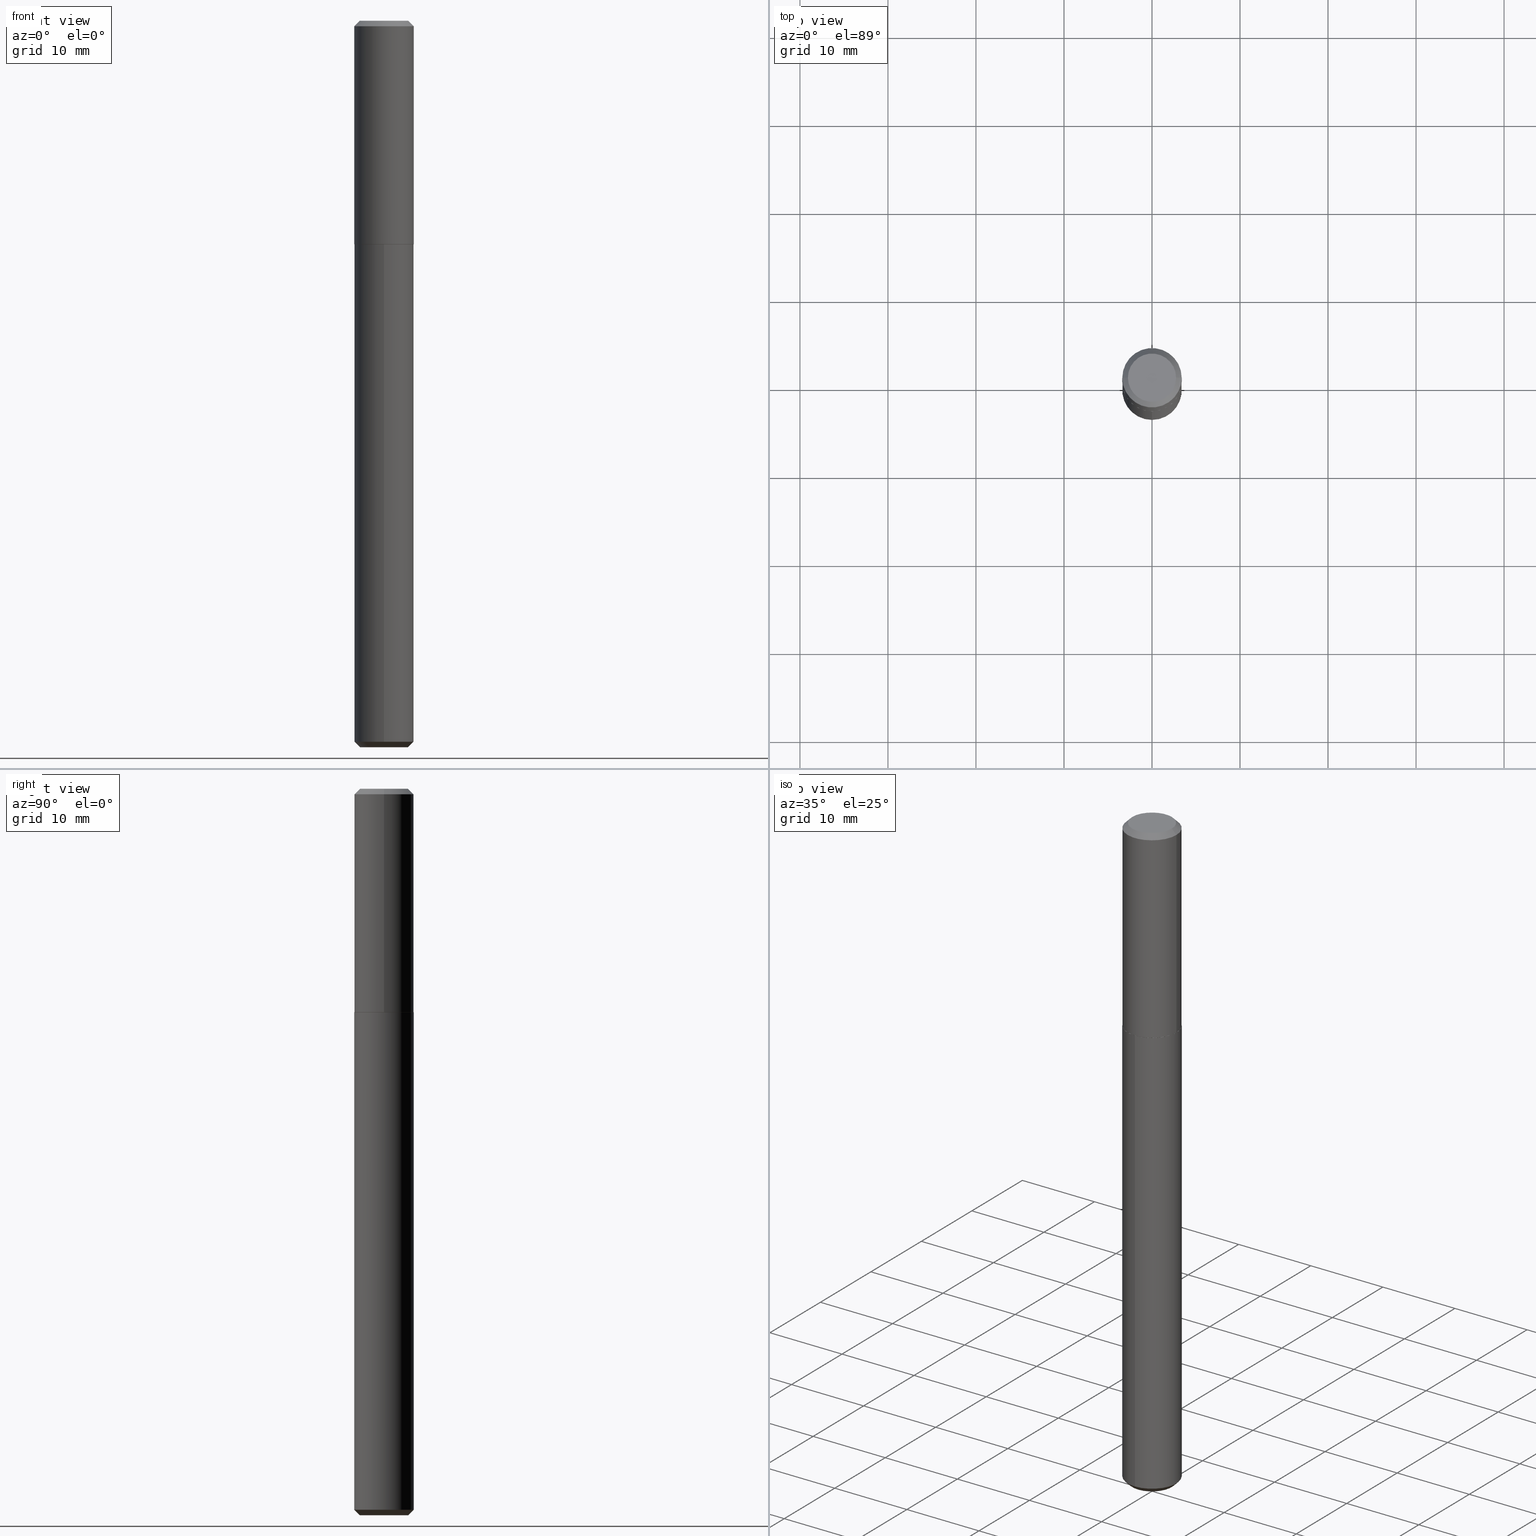
[diagram: canonical four-view strip — front | top / right | iso, engineering-drawing reading convention]
A machine part, canonical four-view strip (front | top / right | iso — engineering-drawing reading convention). The complete STEP part file that produces these views, byte-faithful:
ISO-10303-21;
HEADER;
FILE_DESCRIPTION (( 'STEP AP203' ),
    '1' );
FILE_NAME ('70017.STEP',
    '2024-04-19T13:35:33',
    ( '' ),
    ( '' ),
    'SwSTEP 2.0',
    'SolidWorks 2023',
    '' );
FILE_SCHEMA (( 'CONFIG_CONTROL_DESIGN' ));
ENDSEC;

DATA;
#1 = DIMENSIONAL_EXPONENTS ( 1.000000000000000000, 0.000000000000000000, 0.000000000000000000, 0.000000000000000000, 0.000000000000000000, 0.000000000000000000, 0.000000000000000000 ) ;
#2 = LINE ( 'NONE', #267, #236 ) ;
#3 = ORIENTED_EDGE ( 'NONE', *, *, #30, .T. ) ;
#4 = ADVANCED_FACE ( 'NONE', ( #276 ), #177, .T. ) ;
#5 = CIRCLE ( 'NONE', #295, 0.1077999999999999931 ) ;
#6 = APPROVAL_PERSON_ORGANIZATION ( #287, #189, #349 ) ;
#7 = LINE ( 'NONE', #230, #112 ) ;
#8 = DIRECTION ( 'NONE',  ( 1.000000000000000000, -6.982962677686265922E-15, 4.876159313494118266E-29 ) ) ;
#9 = DIRECTION ( 'NONE',  ( -2.445468806185136597E-29, 3.491481338843145583E-15, 1.000000000000000000 ) ) ;
#10 = ORIENTED_EDGE ( 'NONE', *, *, #184, .F. ) ;
#11 = DIRECTION ( 'NONE',  ( -6.982962677686265133E-15, -1.000000000000000000, 3.085671679590658892E-15 ) ) ;
#12 = FACE_OUTER_BOUND ( 'NONE', #333, .T. ) ;
#13 = ORIENTED_EDGE ( 'NONE', *, *, #30, .F. ) ;
#14 = EDGE_LOOP ( 'NONE', ( #365, #400, #47, #73 ) ) ;
#15 = ORIENTED_EDGE ( 'NONE', *, *, #35, .F. ) ;
#16 = VERTEX_POINT ( 'NONE', #366 ) ;
#17 = VERTEX_POINT ( 'NONE', #242 ) ;
#18 = DIRECTION ( 'NONE',  ( -2.445468806185136597E-29, 3.491481338843145583E-15, 1.000000000000000000 ) ) ;
#19 = EDGE_CURVE ( 'NONE', #141, #105, #332, .T. ) ;
#20 = AXIS2_PLACEMENT_3D ( 'NONE', #74, #140, #374 ) ;
#21 = FACE_OUTER_BOUND ( 'NONE', #238, .T. ) ;
#22 = CYLINDRICAL_SURFACE ( 'NONE', #387, 0.1328000000000000014 ) ;
#23 = EDGE_CURVE ( 'NONE', #398, #105, #89, .T. ) ;
#24 = PERSON_AND_ORGANIZATION ( #183, #228 ) ;
#25 = CIRCLE ( 'NONE', #273, 0.1328000000000000014 ) ;
#26 = AXIS2_PLACEMENT_3D ( 'NONE', #329, #331, #137 ) ;
#27 = COORDINATED_UNIVERSAL_TIME_OFFSET ( 5, 0, .BEHIND. ) ;
#28 = PLANE ( 'NONE',  #402 ) ;
#29 = PERSON_AND_ORGANIZATION_ROLE ( 'creator' ) ;
#30 = EDGE_CURVE ( 'NONE', #369, #306, #257, .T. ) ;
#31 = FACE_OUTER_BOUND ( 'NONE', #352, .T. ) ;
#32 = AXIS2_PLACEMENT_3D ( 'NONE', #375, #80, #211 ) ;
#33 = DIRECTION ( 'NONE',  ( -2.445468806185136877E-29, 3.491481338843145188E-15, 1.000000000000000000 ) ) ;
#34 = LINE ( 'NONE', #199, #67 ) ;
#35 = EDGE_CURVE ( 'NONE', #399, #17, #335, .T. ) ;
#36 = CARTESIAN_POINT ( 'NONE',  ( 7.948471098289592112E-29, -1.134631552277716210E-14, -3.250000000000000000 ) ) ;
#37 = MECHANICAL_CONTEXT ( 'NONE', #261, 'mechanical' ) ;
#38 = AXIS2_PLACEMENT_3D ( 'NONE', #88, #56, #214 ) ;
#39 = CARTESIAN_POINT ( 'NONE',  ( 2.444246071782045197E-29, -3.489735598173725657E-15, -0.9995000000000004992 ) ) ;
#40 = SECURITY_CLASSIFICATION ( '', '', #185 ) ;
#41 = EDGE_CURVE ( 'NONE', #16, #393, #45, .T. ) ;
#42 = FACE_OUTER_BOUND ( 'NONE', #351, .T. ) ;
#43 = DIRECTION ( 'NONE',  ( -0.7071067811865451302, 2.468850131082231817E-15, -0.7071067811865499042 ) ) ;
#44 = ORIENTED_EDGE ( 'NONE', *, *, #54, .T. ) ;
#45 = CIRCLE ( 'NONE', #290, 0.1323000000000001120 ) ;
#46 = AXIS2_PLACEMENT_3D ( 'NONE', #360, #59, #128 ) ;
#47 = ORIENTED_EDGE ( 'NONE', *, *, #23, .F. ) ;
#48 = ORIENTED_EDGE ( 'NONE', *, *, #76, .F. ) ;
#49 = CARTESIAN_POINT ( 'NONE',  ( 2.444246071782045197E-29, -3.489735598173725657E-15, -0.9995000000000004992 ) ) ;
#50 = EDGE_CURVE ( 'NONE', #306, #369, #162, .T. ) ;
#51 = DIRECTION ( 'NONE',  ( -2.445468806185136597E-29, 3.491481338843145583E-15, 1.000000000000000000 ) ) ;
#52 = AXIS2_PLACEMENT_3D ( 'NONE', #221, #256, #386 ) ;
#53 = FACE_OUTER_BOUND ( 'NONE', #72, .T. ) ;
#54 = EDGE_CURVE ( 'NONE', #60, #141, #5, .T. ) ;
#55 = AXIS2_PLACEMENT_3D ( 'NONE', #248, #78, #339 ) ;
#56 = DIRECTION ( 'NONE',  ( -2.445468806185136597E-29, 3.491481338843145583E-15, 1.000000000000000000 ) ) ;
#57 = APPROVAL_STATUS ( 'not_yet_approved' ) ;
#58 = DIRECTION ( 'NONE',  ( -1.000000000000000000, 6.982962677686265922E-15, -4.876176775795935793E-29 ) ) ;
#59 = DIRECTION ( 'NONE',  ( 0.000000000000000000, 0.000000000000000000, 1.000000000000000000 ) ) ;
#60 = VERTEX_POINT ( 'NONE', #132 ) ;
#61 = LINE ( 'NONE', #115, #116 ) ;
#62 = EDGE_CURVE ( 'NONE', #309, #71, #25, .T. ) ;
#63 = DIRECTION ( 'NONE',  ( 1.000000000000000000, -6.982962677686266711E-15, 0.000000000000000000 ) ) ;
#64 = DIRECTION ( 'NONE',  ( -2.445468806185136597E-29, 3.491481338843145583E-15, 1.000000000000000000 ) ) ;
#65 = EDGE_LOOP ( 'NONE', ( #202, #370, #13, #235 ) ) ;
#66 = CARTESIAN_POINT ( 'NONE',  ( 7.887326628377317868E-29, -1.125903958740011493E-14, -3.224999999999999645 ) ) ;
#67 = VECTOR ( 'NONE', #167, 39.37007874015748143 ) ;
#68 = VERTEX_POINT ( 'NONE', #92 ) ;
#69 = ORIENTED_EDGE ( 'NONE', *, *, #50, .F. ) ;
#70 = DIRECTION ( 'NONE',  ( 1.000000000000000000, -6.982962677686265922E-15, 4.876176775795935793E-29 ) ) ;
#71 = VERTEX_POINT ( 'NONE', #148 ) ;
#72 = EDGE_LOOP ( 'NONE', ( #48, #168, #98, #15 ) ) ;
#73 = ORIENTED_EDGE ( 'NONE', *, *, #139, .F. ) ;
#74 = CARTESIAN_POINT ( 'NONE',  ( 6.113672015462882830E-31, -8.728703347107923368E-17, -0.02500000000000016792 ) ) ;
#75 = ORIENTED_EDGE ( 'NONE', *, *, #204, .F. ) ;
#76 = EDGE_CURVE ( 'NONE', #393, #399, #319, .T. ) ;
#77 = APPROVAL_PERSON_ORGANIZATION ( #255, #130, #286 ) ;
#78 = DIRECTION ( 'NONE',  ( -2.445778796490868869E-29, 3.491037415081784460E-15, 1.000000000000000000 ) ) ;
#79 = APPROVAL_STATUS ( 'not_yet_approved' ) ;
#80 = DIRECTION ( 'NONE',  ( -2.445778796490868869E-29, 3.491037415081784460E-15, 1.000000000000000000 ) ) ;
#81 = LINE ( 'NONE', #382, #143 ) ;
#82 = CC_DESIGN_DATE_AND_TIME_ASSIGNMENT ( #415, #218, ( #40 ) ) ;
#83 = AXIS2_PLACEMENT_3D ( 'NONE', #343, #348, #315 ) ;
#84 = AXIS2_PLACEMENT_3D ( 'NONE', #127, #197, #397 ) ;
#85 = APPROVAL_DATE_TIME ( #282, #345 ) ;
#86 = PERSON_AND_ORGANIZATION ( #183, #228 ) ;
#87 = APPROVAL_DATE_TIME ( #154, #130 ) ;
#88 = CARTESIAN_POINT ( 'NONE',  ( 2.445468806185137718E-29, -3.491481338843147160E-15, -1.000000000000000444 ) ) ;
#89 = CIRCLE ( 'NONE', #20, 0.1328000000000000014 ) ;
#90 = CIRCLE ( 'NONE', #407, 0.1328000000000000014 ) ;
#91 = CARTESIAN_POINT ( 'NONE',  ( -8.819790682702965946E-47, 1.259232360816658556E-32, 3.606584823488954451E-18 ) ) ;
#92 = CARTESIAN_POINT ( 'NONE',  ( 8.547829111194798336E-16, 0.1077999999999886410, -3.250000000000000444 ) ) ;
#93 = PERSON_AND_ORGANIZATION_ROLE ( 'design_owner' ) ;
#94 = ADVANCED_FACE ( 'NONE', ( #376 ), #346, .T. ) ;
#95 = DIRECTION ( 'NONE',  ( -2.445468806185136597E-29, 3.491481338843145583E-15, 1.000000000000000000 ) ) ;
#96 = CIRCLE ( 'NONE', #103, 0.1328000000000000014 ) ;
#97 = DIRECTION ( 'NONE',  ( -6.982962677686265133E-15, -1.000000000000000000, 4.114228906120878260E-15 ) ) ;
#98 = ORIENTED_EDGE ( 'NONE', *, *, #367, .T. ) ;
#99 = PRODUCT_DEFINITION_SHAPE ( 'NONE', 'NONE',  #308 ) ;
#100 = DIRECTION ( 'NONE',  ( 5.024295867788020580E-15, 0.7071067811865441310, 0.7071067811865509034 ) ) ;
#101 = EDGE_CURVE ( 'NONE', #304, #68, #111, .T. ) ;
#102 = ORIENTED_EDGE ( 'NONE', *, *, #252, .T. ) ;
#103 = AXIS2_PLACEMENT_3D ( 'NONE', #385, #288, #63 ) ;
#104 = DIRECTION ( 'NONE',  ( -2.445468806185136597E-29, 3.491481338843145583E-15, 1.000000000000000000 ) ) ;
#105 = VERTEX_POINT ( 'NONE', #182 ) ;
#106 = DIRECTION ( 'NONE',  ( -2.445778796490868869E-29, 3.491037415081784460E-15, 1.000000000000000000 ) ) ;
#107 = ORIENTED_EDGE ( 'NONE', *, *, #19, .F. ) ;
#108 = EDGE_CURVE ( 'NONE', #369, #309, #61, .T. ) ;
#109 = ORIENTED_EDGE ( 'NONE', *, *, #151, .F. ) ;
#110 = EDGE_LOOP ( 'NONE', ( #3, #138, #231, #206 ) ) ;
#111 = CIRCLE ( 'NONE', #52, 0.1077999999999999931 ) ;
#112 = VECTOR ( 'NONE', #131, 39.37007874015748143 ) ;
#113 = CC_DESIGN_PERSON_AND_ORGANIZATION_ASSIGNMENT ( #24, #152, ( #337 ) ) ;
#114 = CARTESIAN_POINT ( 'NONE',  ( -0.1077999999999999931, 7.964068933901182285E-16, 7.213169646972493186E-18 ) ) ;
#115 = CARTESIAN_POINT ( 'NONE',  ( -9.273374435967115704E-16, -0.1328000000000034708, -0.9999999999999998890 ) ) ;
#116 = VECTOR ( 'NONE', #316, 39.37007874015748143 ) ;
#117 = APPROVAL_STATUS ( 'not_yet_approved' ) ;
#118 = CC_DESIGN_PERSON_AND_ORGANIZATION_ASSIGNMENT ( #119, #188, ( #40 ) ) ;
#119 = PERSON_AND_ORGANIZATION ( #183, #228 ) ;
#120 = DIRECTION ( 'NONE',  ( 6.982962677686265922E-15, 1.000000000000000000, -3.491037415081784460E-15 ) ) ;
#121 = COORDINATED_UNIVERSAL_TIME_OFFSET ( 5, 0, .BEHIND. ) ;
#122 = CARTESIAN_POINT ( 'NONE',  ( 6.113672015462882830E-31, -8.728703347107923368E-17, -0.02500000000000016792 ) ) ;
#123 = EDGE_CURVE ( 'NONE', #60, #398, #81, .T. ) ;
#124 = CARTESIAN_POINT ( 'NONE',  ( 1.008993461240133010E-29, -5.548595791903587079E-15, -1.000000000000000444 ) ) ;
#125 = DIRECTION ( 'NONE',  ( -6.982962677686265133E-15, -1.000000000000000000, 5.068363624609022710E-15 ) ) ;
#126 = MANIFOLD_SOLID_BREP ( 'Body-Move/Copy2[1]', #186 ) ;
#127 = CARTESIAN_POINT ( 'NONE',  ( 7.887326628377317868E-29, -1.125903958740011493E-14, -3.224999999999999645 ) ) ;
#128 = DIRECTION ( 'NONE',  ( 1.000000000000000000, 0.000000000000000000, 0.000000000000000000 ) ) ;
#129 = ORIENTED_EDGE ( 'NONE', *, *, #396, .F. ) ;
#130 = APPROVAL ( #57, 'UNSPECIFIED' ) ;
#131 = DIRECTION ( 'NONE',  ( -2.445778796490868588E-29, 3.491037415081784460E-15, 1.000000000000000000 ) ) ;
#132 = CARTESIAN_POINT ( 'NONE',  ( 0.1077999999999999931, -8.689614258674547851E-16, 7.213169646983578839E-18 ) ) ;
#133 = CARTESIAN_POINT ( 'NONE',  ( -7.527633766544998796E-16, -0.1078000000000113451, -3.249999999999999556 ) ) ;
#134 = ORIENTED_EDGE ( 'NONE', *, *, #50, .T. ) ;
#135 = CONICAL_SURFACE ( 'NONE', #413, 0.1328000000000000014, 0.7853981633974400633 ) ;
#136 = AXIS2_PLACEMENT_3D ( 'NONE', #325, #104, #368 ) ;
#137 = DIRECTION ( 'NONE',  ( 1.000000000000000000, -6.982962677686265133E-15, 0.000000000000000000 ) ) ;
#138 = ORIENTED_EDGE ( 'NONE', *, *, #377, .T. ) ;
#139 = EDGE_CURVE ( 'NONE', #17, #398, #414, .T. ) ;
#140 = DIRECTION ( 'NONE',  ( -2.445468806185136597E-29, 3.491481338843145583E-15, 1.000000000000000000 ) ) ;
#141 = VERTEX_POINT ( 'NONE', #114 ) ;
#142 = DIRECTION ( 'NONE',  ( 1.000000000000000000, -6.982962677686265133E-15, 0.000000000000000000 ) ) ;
#143 = VECTOR ( 'NONE', #289, 39.37007874015748143 ) ;
#144 = LOCAL_TIME ( 9, 35, 33.00000000000000000, #313 ) ;
#145 = PLANE ( 'NONE',  #209 ) ;
#146 = CALENDAR_DATE ( 2024, 19, 4 ) ;
#147 = ADVANCED_FACE ( 'NONE', ( #416 ), #350, .F. ) ;
#148 = CARTESIAN_POINT ( 'NONE',  ( 9.436007530894919427E-16, 0.1327999999999965042, -1.000000000000000888 ) ) ;
#149 = VECTOR ( 'NONE', #310, 39.37007874015748143 ) ;
#150 = CC_DESIGN_SECURITY_CLASSIFICATION ( #40, ( #337 ) ) ;
#151 = EDGE_CURVE ( 'NONE', #105, #398, #96, .T. ) ;
#152 = PERSON_AND_ORGANIZATION_ROLE ( 'creator' ) ;
#153 = CARTESIAN_POINT ( 'NONE',  ( -0.1328000000000001124, -2.546134845084311614E-15, -0.9995000000000004992 ) ) ;
#154 = DATE_AND_TIME ( #409, #144 ) ;
#155 = ADVANCED_FACE ( 'NONE', ( #31 ), #314, .T. ) ;
#156 = CARTESIAN_POINT ( 'NONE',  ( 2.444246071782045197E-29, -3.489735598173725657E-15, -0.9995000000000004992 ) ) ;
#157 = ADVANCED_FACE ( 'NONE', ( #187 ), #28, .F. ) ;
#158 = CONICAL_SURFACE ( 'NONE', #84, 0.1328000000000000014, 0.7853981633974400633 ) ;
#159 = CARTESIAN_POINT ( 'NONE',  ( 7.947773620101693940E-29, -1.134731435124022443E-14, -3.250000000000000000 ) ) ;
#160 = DIRECTION ( 'NONE',  ( 1.000000000000000000, -6.982962677686265922E-15, 4.876159313494118266E-29 ) ) ;
#161 = ORIENTED_EDGE ( 'NONE', *, *, #35, .T. ) ;
#162 = CIRCLE ( 'NONE', #32, 0.1328000000000000014 ) ;
#163 =( GEOMETRIC_REPRESENTATION_CONTEXT ( 3 ) GLOBAL_UNCERTAINTY_ASSIGNED_CONTEXT ( ( #338 ) ) GLOBAL_UNIT_ASSIGNED_CONTEXT ( ( #213, #247, #371 ) ) REPRESENTATION_CONTEXT ( 'NONE', 'WORKASPACE' ) );
#164 = PRODUCT ( '70017', '70017', '', ( #37 ) ) ;
#165 = PLANE ( 'NONE',  #362 ) ;
#166 = PERSON_AND_ORGANIZATION ( #183, #228 ) ;
#167 = DIRECTION ( 'NONE',  ( -4.937700262164507021E-15, -0.7071067811865392461, 0.7071067811865557884 ) ) ;
#168 = ORIENTED_EDGE ( 'NONE', *, *, #184, .T. ) ;
#169 = DIRECTION ( 'NONE',  ( -2.445778796490868869E-29, 3.491037415081784460E-15, 1.000000000000000000 ) ) ;
#170 = DIRECTION ( 'NONE',  ( 1.000000000000000000, -6.982962677686265133E-15, 0.000000000000000000 ) ) ;
#171 = CC_DESIGN_PERSON_AND_ORGANIZATION_ASSIGNMENT ( #86, #408, ( #337 ) ) ;
#172 = ORIENTED_EDGE ( 'NONE', *, *, #23, .T. ) ;
#173 = ADVANCED_FACE ( 'NONE', ( #354 ), #22, .T. ) ;
#174 = AXIS2_PLACEMENT_3D ( 'NONE', #122, #258, #411 ) ;
#175 = CONICAL_SURFACE ( 'NONE', #347, 0.1328000000000000014, 0.7853981633974449483 ) ;
#176 = ORIENTED_EDGE ( 'NONE', *, *, #377, .F. ) ;
#177 = CYLINDRICAL_SURFACE ( 'NONE', #305, 0.1328000000000000569 ) ;
#178 = CARTESIAN_POINT ( 'NONE',  ( -0.1328000000000000014, 8.400504101256570010E-16, -0.02500000000000016792 ) ) ;
#179 = DIRECTION ( 'NONE',  ( 1.000000000000000000, -6.982962677686269077E-15, 0.000000000000000000 ) ) ;
#180 = ADVANCED_FACE ( 'NONE', ( #291 ), #381, .T. ) ;
#181 = AXIS2_PLACEMENT_3D ( 'NONE', #391, #9, #160 ) ;
#182 = CARTESIAN_POINT ( 'NONE',  ( -0.1328000000000000014, -8.449105627329891359E-16, -0.02500000000000016792 ) ) ;
#183 = PERSON ( 'UNSPECIFIED', 'UNSPECIFIED', 'UNSPECIFIED', ('UNSPECIFIED'), ('UNSPECIFIED'), ('UNSPECIFIED') ) ;
#184 = EDGE_CURVE ( 'NONE', #393, #16, #378, .T. ) ;
#185 = SECURITY_CLASSIFICATION_LEVEL ( 'unclassified' ) ;
#186 = CLOSED_SHELL ( 'NONE', ( #173, #318, #277, #180, #212, #157 ) ) ;
#187 = FACE_OUTER_BOUND ( 'NONE', #302, .T. ) ;
#188 = PERSON_AND_ORGANIZATION_ROLE ( 'classification_officer' ) ;
#189 = APPROVAL ( #117, 'UNSPECIFIED' ) ;
#190 = CARTESIAN_POINT ( 'NONE',  ( 0.1328000000000000569, -9.273374435967366167E-16, 6.475562758257005110E-30 ) ) ;
#191 = APPLICATION_PROTOCOL_DEFINITION ( 'international standard', 'config_control_design', 1994, #261 ) ;
#192 = ORIENTED_EDGE ( 'NONE', *, *, #108, .T. ) ;
#193 = CARTESIAN_POINT ( 'NONE',  ( 2.445468806185137438E-29, -3.491481338843146371E-15, -1.000000000000000222 ) ) ;
#194 = CIRCLE ( 'NONE', #181, 0.1077999999999999931 ) ;
#195 = CIRCLE ( 'NONE', #274, 0.1077999999999999931 ) ;
#196 = DIRECTION ( 'NONE',  ( -1.000000000000000000, 6.982962677686266711E-15, 0.000000000000000000 ) ) ;
#197 = DIRECTION ( 'NONE',  ( -2.445778796490868869E-29, 3.491037415081784460E-15, 1.000000000000000000 ) ) ;
#198 = CC_DESIGN_DATE_AND_TIME_ASSIGNMENT ( #253, #223, ( #308 ) ) ;
#199 = CARTESIAN_POINT ( 'NONE',  ( -9.273374435966573362E-16, -0.1328000000000112424, -3.224999999999999201 ) ) ;
#200 = DIRECTION ( 'NONE',  ( -6.982962677686265133E-15, -1.000000000000000000, 3.085671679590658892E-15 ) ) ;
#201 = ORIENTED_EDGE ( 'NONE', *, *, #406, .T. ) ;
#202 = ORIENTED_EDGE ( 'NONE', *, *, #101, .T. ) ;
#203 = ADVANCED_BREP_SHAPE_REPRESENTATION ( '70017', ( #126, #281, #46 ), #163 ) ;
#204 = EDGE_CURVE ( 'NONE', #399, #105, #249, .T. ) ;
#205 = CARTESIAN_POINT ( 'NONE',  ( 9.436007530894923371E-16, 0.1327999999999888436, -3.225000000000000089 ) ) ;
#206 = ORIENTED_EDGE ( 'NONE', *, *, #108, .F. ) ;
#207 = ORIENTED_EDGE ( 'NONE', *, *, #139, .T. ) ;
#208 = ORIENTED_EDGE ( 'NONE', *, *, #62, .T. ) ;
#209 = AXIS2_PLACEMENT_3D ( 'NONE', #124, #280, #120 ) ;
#210 = ORIENTED_EDGE ( 'NONE', *, *, #367, .F. ) ;
#211 = DIRECTION ( 'NONE',  ( -6.982962677686265133E-15, -1.000000000000000000, 4.114228906120878260E-15 ) ) ;
#212 = ADVANCED_FACE ( 'NONE', ( #21 ), #145, .F. ) ;
#213 =( CONVERSION_BASED_UNIT ( 'INCH', #358 ) LENGTH_UNIT ( ) NAMED_UNIT ( #1 ) );
#214 = DIRECTION ( 'NONE',  ( 1.000000000000000000, -6.982962677686269077E-15, 0.000000000000000000 ) ) ;
#215 = VECTOR ( 'NONE', #43, 39.37007874015748143 ) ;
#216 = CC_DESIGN_APPROVAL ( #130, ( #40 ) ) ;
#217 = CC_DESIGN_PERSON_AND_ORGANIZATION_ASSIGNMENT ( #166, #29, ( #308 ) ) ;
#218 = DATE_TIME_ROLE ( 'classification_date' ) ;
#219 = DIRECTION ( 'NONE',  ( -6.982962677686265133E-15, -1.000000000000000000, 3.085671679590658892E-15 ) ) ;
#220 = APPROVAL_PERSON_ORGANIZATION ( #389, #345, #342 ) ;
#221 = CARTESIAN_POINT ( 'NONE',  ( 7.948471098289592112E-29, -1.134631552277716210E-14, -3.250000000000000000 ) ) ;
#222 = PRODUCT_RELATED_PRODUCT_CATEGORY ( 'detail', '', ( #164 ) ) ;
#223 = DATE_TIME_ROLE ( 'creation_date' ) ;
#224 = DIRECTION ( 'NONE',  ( -6.982962677686265922E-15, -1.000000000000000000, 3.491037415081784460E-15 ) ) ;
#225 = APPLICATION_PROTOCOL_DEFINITION ( 'international standard', 'config_control_design', 1994, #250 ) ;
#226 = DIRECTION ( 'NONE',  ( 2.438088387897960049E-29, -3.491481338843145188E-15, -1.000000000000000000 ) ) ;
#227 = CONICAL_SURFACE ( 'NONE', #344, 0.1328000000000001124, 0.7853981633975507526 ) ;
#228 = ORGANIZATION ( 'UNSPECIFIED', 'UNSPECIFIED', '' ) ;
#229 = ADVANCED_FACE ( 'NONE', ( #53 ), #227, .T. ) ;
#230 = CARTESIAN_POINT ( 'NONE',  ( 9.436007530894375113E-16, 0.1327999999999965042, -1.000000000000000666 ) ) ;
#231 = ORIENTED_EDGE ( 'NONE', *, *, #62, .F. ) ;
#232 = CARTESIAN_POINT ( 'NONE',  ( -9.273374435966567446E-16, -0.1328000000000111591, -3.224999999999999201 ) ) ;
#233 = ORIENTED_EDGE ( 'NONE', *, *, #299, .F. ) ;
#234 = CARTESIAN_POINT ( 'NONE',  ( 6.113672015462882830E-31, -8.728703347107923368E-17, -0.02500000000000016792 ) ) ;
#235 = ORIENTED_EDGE ( 'NONE', *, *, #252, .F. ) ;
#236 = VECTOR ( 'NONE', #100, 39.37007874015748143 ) ;
#237 = DIRECTION ( 'NONE',  ( -2.445778796490868869E-29, 3.491037415081784460E-15, 1.000000000000000000 ) ) ;
#238 = EDGE_LOOP ( 'NONE', ( #208, #372 ) ) ;
#239 = DIRECTION ( 'NONE',  ( -2.445468806185136597E-29, 3.491481338843145583E-15, 1.000000000000000000 ) ) ;
#240 = LINE ( 'NONE', #303, #379 ) ;
#241 = EDGE_LOOP ( 'NONE', ( #392, #301, #129, #210 ) ) ;
#242 = CARTESIAN_POINT ( 'NONE',  ( 0.1328000000000001124, -4.417073041770462668E-15, -0.9995000000000004992 ) ) ;
#243 = ORIENTED_EDGE ( 'NONE', *, *, #54, .F. ) ;
#244 = ORIENTED_EDGE ( 'NONE', *, *, #406, .F. ) ;
#245 = CLOSED_SHELL ( 'NONE', ( #155, #4, #94, #269, #229, #260, #380, #147 ) ) ;
#246 = CIRCLE ( 'NONE', #26, 0.1328000000000001124 ) ;
#247 =( NAMED_UNIT ( * ) PLANE_ANGLE_UNIT ( ) SI_UNIT ( $, .RADIAN. ) );
#248 = CARTESIAN_POINT ( 'NONE',  ( 7.887326628377317868E-29, -1.125903958740011493E-14, -3.224999999999999645 ) ) ;
#249 = LINE ( 'NONE', #356, #149 ) ;
#250 = APPLICATION_CONTEXT ( 'configuration controlled 3d designs of mechanical parts and assemblies' ) ;
#251 = DIRECTION ( 'NONE',  ( -2.445778796490868869E-29, 3.491037415081784460E-15, 1.000000000000000000 ) ) ;
#252 = EDGE_CURVE ( 'NONE', #304, #369, #34, .T. ) ;
#253 = DATE_AND_TIME ( #412, #265 ) ;
#254 = SHAPE_DEFINITION_REPRESENTATION ( #99, #203 ) ;
#255 = PERSON_AND_ORGANIZATION ( #183, #228 ) ;
#256 = DIRECTION ( 'NONE',  ( -2.445778796490868869E-29, 3.491037415081784460E-15, 1.000000000000000000 ) ) ;
#257 = CIRCLE ( 'NONE', #55, 0.1328000000000000014 ) ;
#258 = DIRECTION ( 'NONE',  ( 2.445468806185136597E-29, -3.491481338843145583E-15, -1.000000000000000000 ) ) ;
#259 = DIRECTION ( 'NONE',  ( -2.445778796490868588E-29, 3.491037415081784460E-15, 1.000000000000000000 ) ) ;
#260 = ADVANCED_FACE ( 'NONE', ( #12 ), #364, .T. ) ;
#261 = APPLICATION_CONTEXT ( 'configuration controlled 3d designs of mechanical parts and assemblies' ) ;
#262 = CARTESIAN_POINT ( 'NONE',  ( 2.445468806185137998E-29, -3.491481338843147555E-15, -1.000000000000000444 ) ) ;
#263 = VECTOR ( 'NONE', #33, 39.37007874015748143 ) ;
#264 = PERSON_AND_ORGANIZATION ( #183, #228 ) ;
#265 = LOCAL_TIME ( 9, 35, 33.00000000000000000, #27 ) ;
#266 = EDGE_LOOP ( 'NONE', ( #297, #201, #102, #69 ) ) ;
#267 = CARTESIAN_POINT ( 'NONE',  ( 9.436007530894917455E-16, 0.1327999999999887326, -3.225000000000000089 ) ) ;
#268 = FACE_OUTER_BOUND ( 'NONE', #401, .T. ) ;
#269 = ADVANCED_FACE ( 'NONE', ( #42 ), #165, .F. ) ;
#270 = CARTESIAN_POINT ( 'NONE',  ( 2.445468806185137998E-29, -3.491481338843147555E-15, -1.000000000000000444 ) ) ;
#271 = DIRECTION ( 'NONE',  ( 2.445468806185136597E-29, -3.491481338843145583E-15, -1.000000000000000000 ) ) ;
#272 = ORIENTED_EDGE ( 'NONE', *, *, #151, .T. ) ;
#273 = AXIS2_PLACEMENT_3D ( 'NONE', #270, #169, #11 ) ;
#274 = AXIS2_PLACEMENT_3D ( 'NONE', #36, #237, #125 ) ;
#275 = DIRECTION ( 'NONE',  ( -2.445778796490868869E-29, 3.491037415081784460E-15, 1.000000000000000000 ) ) ;
#276 = FACE_OUTER_BOUND ( 'NONE', #14, .T. ) ;
#277 = ADVANCED_FACE ( 'NONE', ( #300 ), #135, .T. ) ;
#278 = CARTESIAN_POINT ( 'NONE',  ( 2.445468806185137718E-29, -3.491481338843147160E-15, -1.000000000000000444 ) ) ;
#279 = LOCAL_TIME ( 9, 35, 33.00000000000000000, #121 ) ;
#280 = DIRECTION ( 'NONE',  ( 2.445778796490868588E-29, -3.491037415081784460E-15, -1.000000000000000000 ) ) ;
#281 = MANIFOLD_SOLID_BREP ( 'Body-Move/Copy2[2]', #245 ) ;
#282 = DATE_AND_TIME ( #146, #285 ) ;
#283 = CALENDAR_DATE ( 2024, 19, 4 ) ;
#284 = VECTOR ( 'NONE', #311, 39.37007874015748143 ) ;
#285 = LOCAL_TIME ( 9, 35, 33.00000000000000000, #340 ) ;
#286 = APPROVAL_ROLE ( '' ) ;
#287 = PERSON_AND_ORGANIZATION ( #183, #228 ) ;
#288 = DIRECTION ( 'NONE',  ( -2.445468806185136597E-29, 3.491481338843145583E-15, 1.000000000000000000 ) ) ;
#289 = DIRECTION ( 'NONE',  ( 0.7071067811865451302, -7.319954787623248157E-15, -0.7071067811865499042 ) ) ;
#290 = AXIS2_PLACEMENT_3D ( 'NONE', #278, #403, #179 ) ;
#291 = FACE_OUTER_BOUND ( 'NONE', #395, .T. ) ;
#292 = FACE_OUTER_BOUND ( 'NONE', #65, .T. ) ;
#293 = ORIENTED_EDGE ( 'NONE', *, *, #123, .T. ) ;
#294 =( LENGTH_UNIT ( ) NAMED_UNIT ( * ) SI_UNIT ( $, .METRE. ) );
#295 = AXIS2_PLACEMENT_3D ( 'NONE', #341, #51, #8 ) ;
#296 = CC_DESIGN_APPROVAL ( #345, ( #308 ) ) ;
#297 = ORIENTED_EDGE ( 'NONE', *, *, #334, .F. ) ;
#298 = DIRECTION ( 'NONE',  ( 0.7071067811866199593, -2.468850131083015945E-15, 0.7071067811864750752 ) ) ;
#299 = EDGE_CURVE ( 'NONE', #141, #60, #194, .T. ) ;
#300 = FACE_OUTER_BOUND ( 'NONE', #266, .T. ) ;
#301 = ORIENTED_EDGE ( 'NONE', *, *, #76, .T. ) ;
#302 = EDGE_LOOP ( 'NONE', ( #326, #244 ) ) ;
#303 = CARTESIAN_POINT ( 'NONE',  ( 0.1328000000000001124, -4.417073041770462668E-15, -0.9995000000000004992 ) ) ;
#304 = VERTEX_POINT ( 'NONE', #133 ) ;
#305 = AXIS2_PLACEMENT_3D ( 'NONE', #363, #239, #330 ) ;
#306 = VERTEX_POINT ( 'NONE', #205 ) ;
#307 = ORIENTED_EDGE ( 'NONE', *, *, #19, .T. ) ;
#308 = PRODUCT_DEFINITION ( 'UNKNOWN', '', #337, #404 ) ;
#309 = VERTEX_POINT ( 'NONE', #388 ) ;
#310 = DIRECTION ( 'NONE',  ( -2.445468806185136877E-29, 3.491481338843145188E-15, 1.000000000000000000 ) ) ;
#311 = DIRECTION ( 'NONE',  ( -0.7071067811866199593, 7.493145998870616062E-15, 0.7071067811864750752 ) ) ;
#312 = APPROVAL_DATE_TIME ( #410, #189 ) ;
#313 = COORDINATED_UNIVERSAL_TIME_OFFSET ( 5, 0, .BEHIND. ) ;
#314 = CONICAL_SURFACE ( 'NONE', #174, 0.1328000000000000014, 0.7853981633974449483 ) ;
#315 = DIRECTION ( 'NONE',  ( -6.982962677686265133E-15, -1.000000000000000000, 3.085671679590658892E-15 ) ) ;
#316 = DIRECTION ( 'NONE',  ( -2.445778796490868588E-29, 3.491037415081784460E-15, 1.000000000000000000 ) ) ;
#317 = EDGE_LOOP ( 'NONE', ( #322, #44 ) ) ;
#318 = ADVANCED_FACE ( 'NONE', ( #292 ), #158, .T. ) ;
#319 = LINE ( 'NONE', #153, #284 ) ;
#320 = CC_DESIGN_APPROVAL ( #189, ( #337 ) ) ;
#321 = CARTESIAN_POINT ( 'NONE',  ( -0.1323000000000001120, -2.548784072258422421E-15, -1.000000000000000444 ) ) ;
#322 = ORIENTED_EDGE ( 'NONE', *, *, #299, .T. ) ;
#323 = CARTESIAN_POINT ( 'NONE',  ( -0.1328000000000001124, -2.546134845084311614E-15, -0.9995000000000004992 ) ) ;
#324 = ORIENTED_EDGE ( 'NONE', *, *, #390, .F. ) ;
#325 = CARTESIAN_POINT ( 'NONE',  ( 0.000000000000000000, 0.000000000000000000, 0.000000000000000000 ) ) ;
#326 = ORIENTED_EDGE ( 'NONE', *, *, #101, .F. ) ;
#327 = AXIS2_PLACEMENT_3D ( 'NONE', #156, #95, #405 ) ;
#328 = LOCAL_TIME ( 9, 35, 33.00000000000000000, #353 ) ;
#329 = CARTESIAN_POINT ( 'NONE',  ( 2.444246071782045197E-29, -3.489735598173725657E-15, -0.9995000000000004992 ) ) ;
#330 = DIRECTION ( 'NONE',  ( 1.000000000000000000, -6.982962677686266711E-15, 4.876176775795935232E-29 ) ) ;
#331 = DIRECTION ( 'NONE',  ( -2.445468806185136597E-29, 3.491481338843145583E-15, 1.000000000000000000 ) ) ;
#332 = LINE ( 'NONE', #178, #215 ) ;
#333 = EDGE_LOOP ( 'NONE', ( #75, #161, #207, #109 ) ) ;
#334 = EDGE_CURVE ( 'NONE', #68, #306, #2, .T. ) ;
#335 = CIRCLE ( 'NONE', #373, 0.1328000000000001124 ) ;
#336 = ORIENTED_EDGE ( 'NONE', *, *, #123, .F. ) ;
#337 = PRODUCT_DEFINITION_FORMATION_WITH_SPECIFIED_SOURCE ( 'ANY', '', #164, .NOT_KNOWN. ) ;
#338 = UNCERTAINTY_MEASURE_WITH_UNIT (LENGTH_MEASURE( 1.000000000000000082E-05 ), #213, 'distance_accuracy_value', 'NONE');
#339 = DIRECTION ( 'NONE',  ( -6.982962677686265133E-15, -1.000000000000000000, 4.114228906120878260E-15 ) ) ;
#340 = COORDINATED_UNIVERSAL_TIME_OFFSET ( 5, 0, .BEHIND. ) ;
#341 = CARTESIAN_POINT ( 'NONE',  ( -1.763958136540593189E-46, 2.518464721633317113E-32, 7.213169646977908901E-18 ) ) ;
#342 = APPROVAL_ROLE ( '' ) ;
#343 = CARTESIAN_POINT ( 'NONE',  ( 2.445468806185137438E-29, -3.491481338843146371E-15, -1.000000000000000222 ) ) ;
#344 = AXIS2_PLACEMENT_3D ( 'NONE', #39, #64, #170 ) ;
#345 = APPROVAL ( #79, 'UNSPECIFIED' ) ;
#346 = CONICAL_SURFACE ( 'NONE', #327, 0.1328000000000001124, 0.7853981633975507526 ) ;
#347 = AXIS2_PLACEMENT_3D ( 'NONE', #234, #271, #196 ) ;
#348 = DIRECTION ( 'NONE',  ( -2.445778796490868869E-29, 3.491037415081784460E-15, 1.000000000000000000 ) ) ;
#349 = APPROVAL_ROLE ( '' ) ;
#350 = PLANE ( 'NONE',  #355 ) ;
#351 = EDGE_LOOP ( 'NONE', ( #359, #10 ) ) ;
#352 = EDGE_LOOP ( 'NONE', ( #243, #293, #172, #107 ) ) ;
#353 = COORDINATED_UNIVERSAL_TIME_OFFSET ( 5, 0, .BEHIND. ) ;
#354 = FACE_OUTER_BOUND ( 'NONE', #110, .T. ) ;
#355 = AXIS2_PLACEMENT_3D ( 'NONE', #91, #226, #58 ) ;
#356 = CARTESIAN_POINT ( 'NONE',  ( -0.1328000000000000569, 9.436007530894134510E-16, -6.532345799858516735E-30 ) ) ;
#357 = CARTESIAN_POINT ( 'NONE',  ( 0.1328000000000000014, -1.014624477067815542E-15, -0.02500000000000016792 ) ) ;
#358 = LENGTH_MEASURE_WITH_UNIT ( LENGTH_MEASURE( 0.02539999999999999897 ), #294 );
#359 = ORIENTED_EDGE ( 'NONE', *, *, #41, .F. ) ;
#360 = CARTESIAN_POINT ( 'NONE',  ( 0.000000000000000000, 0.000000000000000000, 0.000000000000000000 ) ) ;
#361 = CARTESIAN_POINT ( 'NONE',  ( 2.445468806185137998E-29, -3.491481338843147555E-15, -1.000000000000000444 ) ) ;
#362 = AXIS2_PLACEMENT_3D ( 'NONE', #262, #394, #70 ) ;
#363 = CARTESIAN_POINT ( 'NONE',  ( 0.000000000000000000, 0.000000000000000000, 0.000000000000000000 ) ) ;
#364 = CYLINDRICAL_SURFACE ( 'NONE', #136, 0.1328000000000000569 ) ;
#365 = ORIENTED_EDGE ( 'NONE', *, *, #396, .T. ) ;
#366 = CARTESIAN_POINT ( 'NONE',  ( 0.1323000000000001120, -4.415327301101041164E-15, -1.000000000000000444 ) ) ;
#367 = EDGE_CURVE ( 'NONE', #16, #17, #240, .T. ) ;
#368 = DIRECTION ( 'NONE',  ( 1.000000000000000000, -6.982962677686266711E-15, 4.876176775795935232E-29 ) ) ;
#369 = VERTEX_POINT ( 'NONE', #232 ) ;
#370 = ORIENTED_EDGE ( 'NONE', *, *, #334, .T. ) ;
#371 =( NAMED_UNIT ( * ) SI_UNIT ( $, .STERADIAN. ) SOLID_ANGLE_UNIT ( ) );
#372 = ORIENTED_EDGE ( 'NONE', *, *, #390, .T. ) ;
#373 = AXIS2_PLACEMENT_3D ( 'NONE', #49, #18, #142 ) ;
#374 = DIRECTION ( 'NONE',  ( 1.000000000000000000, -6.982962677686266711E-15, 0.000000000000000000 ) ) ;
#375 = CARTESIAN_POINT ( 'NONE',  ( 7.887326628377317868E-29, -1.125903958740011493E-14, -3.224999999999999645 ) ) ;
#376 = FACE_OUTER_BOUND ( 'NONE', #241, .T. ) ;
#377 = EDGE_CURVE ( 'NONE', #306, #71, #7, .T. ) ;
#378 = CIRCLE ( 'NONE', #38, 0.1323000000000001120 ) ;
#379 = VECTOR ( 'NONE', #298, 39.37007874015748143 ) ;
#380 = ADVANCED_FACE ( 'NONE', ( #268 ), #175, .T. ) ;
#381 = CYLINDRICAL_SURFACE ( 'NONE', #83, 0.1328000000000000014 ) ;
#382 = CARTESIAN_POINT ( 'NONE',  ( 0.1328000000000000014, -9.983611675751385108E-16, -0.02500000000000016792 ) ) ;
#383 = CC_DESIGN_PERSON_AND_ORGANIZATION_ASSIGNMENT ( #264, #93, ( #164 ) ) ;
#384 = CALENDAR_DATE ( 2024, 19, 4 ) ;
#385 = CARTESIAN_POINT ( 'NONE',  ( 6.113672015462882830E-31, -8.728703347107923368E-17, -0.02500000000000016792 ) ) ;
#386 = DIRECTION ( 'NONE',  ( -6.982962677686265133E-15, -1.000000000000000000, 5.068363624609022710E-15 ) ) ;
#387 = AXIS2_PLACEMENT_3D ( 'NONE', #193, #251, #219 ) ;
#388 = CARTESIAN_POINT ( 'NONE',  ( -9.273374435967115704E-16, -0.1328000000000034708, -1.000000000000000222 ) ) ;
#389 = PERSON_AND_ORGANIZATION ( #183, #228 ) ;
#390 = EDGE_CURVE ( 'NONE', #71, #309, #90, .T. ) ;
#391 = CARTESIAN_POINT ( 'NONE',  ( -1.763958136540593189E-46, 2.518464721633317113E-32, 7.213169646977908901E-18 ) ) ;
#392 = ORIENTED_EDGE ( 'NONE', *, *, #41, .T. ) ;
#393 = VERTEX_POINT ( 'NONE', #321 ) ;
#394 = DIRECTION ( 'NONE',  ( -2.438088387897960049E-29, 3.491481338843145188E-15, 1.000000000000000000 ) ) ;
#395 = EDGE_LOOP ( 'NONE', ( #176, #134, #192, #324 ) ) ;
#396 = EDGE_CURVE ( 'NONE', #17, #399, #246, .T. ) ;
#397 = DIRECTION ( 'NONE',  ( -6.982962677686265133E-15, -1.000000000000000000, 4.114228906120878260E-15 ) ) ;
#398 = VERTEX_POINT ( 'NONE', #357 ) ;
#399 = VERTEX_POINT ( 'NONE', #323 ) ;
#400 = ORIENTED_EDGE ( 'NONE', *, *, #204, .T. ) ;
#401 = EDGE_LOOP ( 'NONE', ( #336, #233, #307, #272 ) ) ;
#402 = AXIS2_PLACEMENT_3D ( 'NONE', #159, #259, #224 ) ;
#403 = DIRECTION ( 'NONE',  ( -2.445468806185136597E-29, 3.491481338843145583E-15, 1.000000000000000000 ) ) ;
#404 = DESIGN_CONTEXT ( 'detailed design', #250, 'design' ) ;
#405 = DIRECTION ( 'NONE',  ( 1.000000000000000000, -6.982962677686265133E-15, 0.000000000000000000 ) ) ;
#406 = EDGE_CURVE ( 'NONE', #68, #304, #195, .T. ) ;
#407 = AXIS2_PLACEMENT_3D ( 'NONE', #361, #275, #200 ) ;
#408 = PERSON_AND_ORGANIZATION_ROLE ( 'design_supplier' ) ;
#409 = CALENDAR_DATE ( 2024, 19, 4 ) ;
#410 = DATE_AND_TIME ( #283, #328 ) ;
#411 = DIRECTION ( 'NONE',  ( -1.000000000000000000, 6.982962677686266711E-15, 0.000000000000000000 ) ) ;
#412 = CALENDAR_DATE ( 2024, 19, 4 ) ;
#413 = AXIS2_PLACEMENT_3D ( 'NONE', #66, #106, #97 ) ;
#414 = LINE ( 'NONE', #190, #263 ) ;
#415 = DATE_AND_TIME ( #384, #279 ) ;
#416 = FACE_OUTER_BOUND ( 'NONE', #317, .T. ) ;
ENDSEC;
END-ISO-10303-21;
